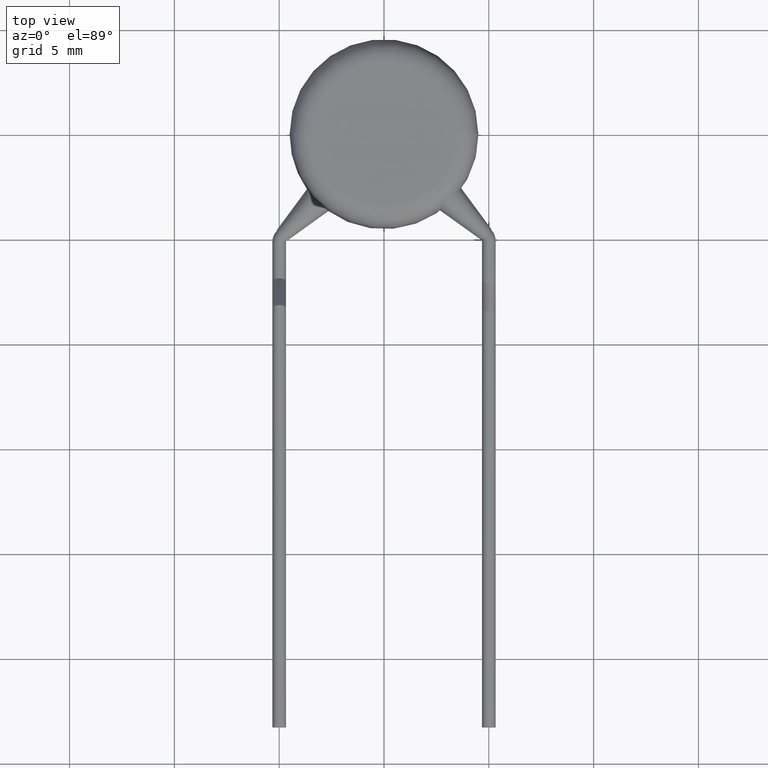
[diagram: clean part render]
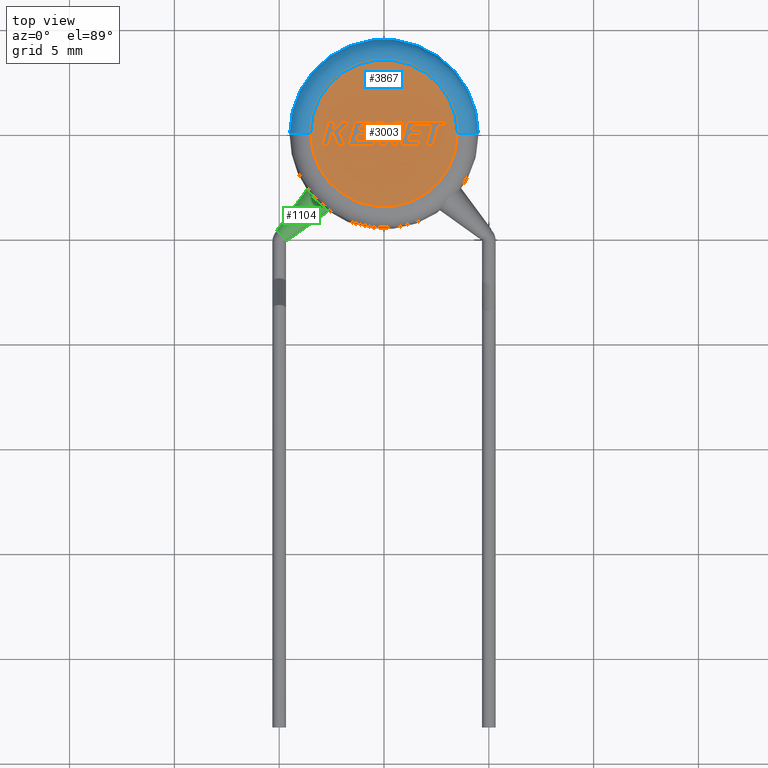
[diagram: same view with three faces highlighted in distinct colors, each labeled with its STEP entity id]
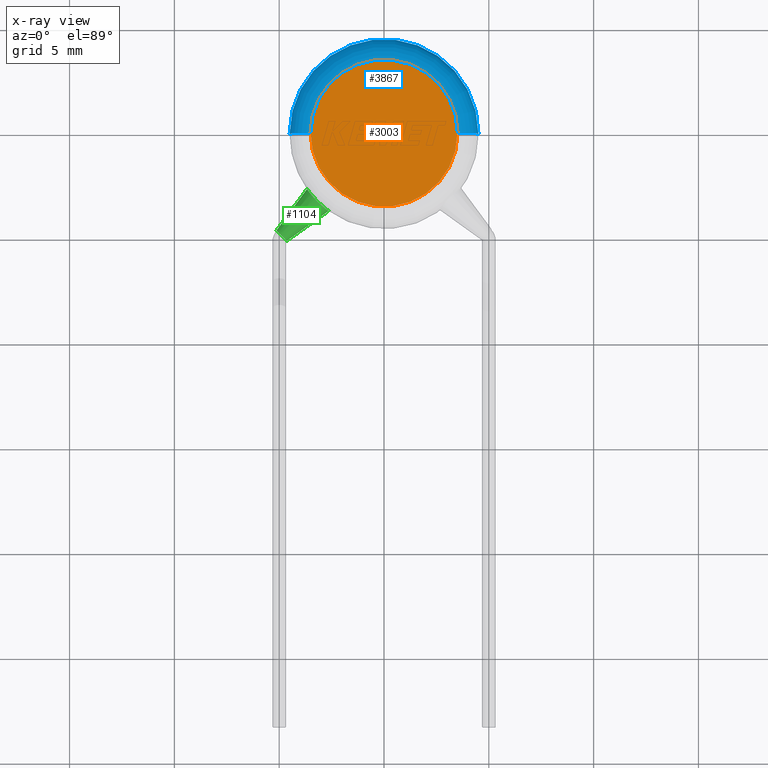
[diagram: x-ray of the same camera — body ghosted, the three highlighted faces saturated]
A machine part, top view with three faces highlighted in distinct colors.
The next image is the same camera in x-ray (body ghosted, the three faces saturated) — at least one of them is partly hidden behind the body in this view.
Their STEP definitions:

[orange] entity #3003 — the highlighted planar face has unit normal (0, 0, 1).
#232 = EDGE_CURVE ( 'NONE', #2545, #632, #2325, .T. ) ;
#616 = ORIENTED_EDGE ( 'NONE', *, *, #1552, .T. ) ;
#628 = CIRCLE ( 'NONE', #2949, 3.499999999999999600 ) ;
#632 = VERTEX_POINT ( 'NONE', #2626 ) ;
#669 = FACE_OUTER_BOUND ( 'NONE', #1146, .T. ) ;
#1146 = EDGE_LOOP ( 'NONE', ( #3660, #616 ) ) ;
#1552 = EDGE_CURVE ( 'NONE', #632, #2545, #628, .T. ) ;
#1688 = CARTESIAN_POINT ( 'NONE',  ( 3.499999999999999600, 0.0000000000000000000, 5.500000000000000000 ) ) ;
#1770 = DIRECTION ( 'NONE',  ( 0.0000000000000000000, 0.0000000000000000000, 1.000000000000000000 ) ) ;
#1920 = AXIS2_PLACEMENT_3D ( 'NONE', #2134, #1770, #3094 ) ;
#2134 = CARTESIAN_POINT ( 'NONE',  ( 0.0000000000000000000, 0.0000000000000000000, 5.500000000000000000 ) ) ;
#2325 = CIRCLE ( 'NONE', #1920, 3.499999999999999600 ) ;
#2445 = DIRECTION ( 'NONE',  ( 1.000000000000000000, 0.0000000000000000000, 0.0000000000000000000 ) ) ;
#2494 = DIRECTION ( 'NONE',  ( 0.0000000000000000000, 0.0000000000000000000, 1.000000000000000000 ) ) ;
#2545 = VERTEX_POINT ( 'NONE', #1688 ) ;
#2626 = CARTESIAN_POINT ( 'NONE',  ( -3.499999999999999600, 4.898587196589412800E-016, 5.500000000000000000 ) ) ;
#2949 = AXIS2_PLACEMENT_3D ( 'NONE', #3589, #3399, #2445 ) ;
#3003 = ADVANCED_FACE ( 'NONE', ( #669 ), #3834, .T. ) ;
#3094 = DIRECTION ( 'NONE',  ( 1.000000000000000000, 0.0000000000000000000, 0.0000000000000000000 ) ) ;
#3399 = DIRECTION ( 'NONE',  ( 0.0000000000000000000, 0.0000000000000000000, 1.000000000000000000 ) ) ;
#3589 = CARTESIAN_POINT ( 'NONE',  ( 0.0000000000000000000, 0.0000000000000000000, 5.500000000000000000 ) ) ;
#3660 = ORIENTED_EDGE ( 'NONE', *, *, #232, .T. ) ;
#3834 = PLANE ( 'NONE',  #3938 ) ;
#3938 = AXIS2_PLACEMENT_3D ( 'NONE', #4112, #2494, #4126 ) ;
#4112 = CARTESIAN_POINT ( 'NONE',  ( 0.0000000000000000000, 0.0000000000000000000, 5.500000000000000000 ) ) ;
#4126 = DIRECTION ( 'NONE',  ( 1.000000000000000000, 0.0000000000000000000, -0.0000000000000000000 ) ) ;

[blue] entity #3867 — the highlighted toroidal blend (fillet) surface has major radius 3.5 mm and minor (blend) radius 1 mm.
#34 = EDGE_CURVE ( 'NONE', #2918, #632, #339, .T. ) ;
#232 = EDGE_CURVE ( 'NONE', #2545, #632, #2325, .T. ) ;
#339 = CIRCLE ( 'NONE', #2962, 1.000000000000000000 ) ;
#559 = EDGE_CURVE ( 'NONE', #2918, #3190, #2883, .T. ) ;
#632 = VERTEX_POINT ( 'NONE', #2626 ) ;
#711 = CARTESIAN_POINT ( 'NONE',  ( 0.0000000000000000000, 0.0000000000000000000, 4.500000000000000000 ) ) ;
#1258 = TOROIDAL_SURFACE ( 'NONE', #1963, 3.499999999999999600, 1.000000000000000000 ) ;
#1259 = ORIENTED_EDGE ( 'NONE', *, *, #34, .T. ) ;
#1586 = DIRECTION ( 'NONE',  ( -1.000000000000000000, 1.224646799147353000E-016, 0.0000000000000000000 ) ) ;
#1688 = CARTESIAN_POINT ( 'NONE',  ( 3.499999999999999600, 0.0000000000000000000, 5.500000000000000000 ) ) ;
#1770 = DIRECTION ( 'NONE',  ( 0.0000000000000000000, 0.0000000000000000000, 1.000000000000000000 ) ) ;
#1778 = ORIENTED_EDGE ( 'NONE', *, *, #559, .F. ) ;
#1806 = CARTESIAN_POINT ( 'NONE',  ( 3.499999999999999600, 0.0000000000000000000, 4.500000000000000000 ) ) ;
#1881 = CARTESIAN_POINT ( 'NONE',  ( -4.500000000000000000, 0.0000000000000000000, 4.500000000000000000 ) ) ;
#1920 = AXIS2_PLACEMENT_3D ( 'NONE', #2134, #1770, #3094 ) ;
#1963 = AXIS2_PLACEMENT_3D ( 'NONE', #711, #3688, #3719 ) ;
#2134 = CARTESIAN_POINT ( 'NONE',  ( 0.0000000000000000000, 0.0000000000000000000, 5.500000000000000000 ) ) ;
#2172 = DIRECTION ( 'NONE',  ( 0.0000000000000000000, 0.0000000000000000000, -1.000000000000000000 ) ) ;
#2245 = CARTESIAN_POINT ( 'NONE',  ( 0.0000000000000000000, 0.0000000000000000000, 4.500000000000000000 ) ) ;
#2256 = DIRECTION ( 'NONE',  ( 1.000000000000000000, 0.0000000000000000000, 0.0000000000000000000 ) ) ;
#2325 = CIRCLE ( 'NONE', #1920, 3.499999999999999600 ) ;
#2482 = EDGE_LOOP ( 'NONE', ( #1778, #1259, #2611, #4262 ) ) ;
#2484 = FACE_OUTER_BOUND ( 'NONE', #2482, .T. ) ;
#2545 = VERTEX_POINT ( 'NONE', #1688 ) ;
#2611 = ORIENTED_EDGE ( 'NONE', *, *, #232, .F. ) ;
#2626 = CARTESIAN_POINT ( 'NONE',  ( -3.499999999999999600, 4.898587196589412800E-016, 5.500000000000000000 ) ) ;
#2808 = CARTESIAN_POINT ( 'NONE',  ( 4.500000000000000000, 5.510910596163088600E-016, 4.500000000000000000 ) ) ;
#2883 = CIRCLE ( 'NONE', #3597, 4.500000000000000000 ) ;
#2918 = VERTEX_POINT ( 'NONE', #1881 ) ;
#2962 = AXIS2_PLACEMENT_3D ( 'NONE', #3300, #3910, #1586 ) ;
#3094 = DIRECTION ( 'NONE',  ( 1.000000000000000000, 0.0000000000000000000, 0.0000000000000000000 ) ) ;
#3190 = VERTEX_POINT ( 'NONE', #2808 ) ;
#3300 = CARTESIAN_POINT ( 'NONE',  ( -3.499999999999999600, 4.286263797015736100E-016, 4.500000000000000000 ) ) ;
#3556 = CIRCLE ( 'NONE', #3716, 1.000000000000000000 ) ;
#3597 = AXIS2_PLACEMENT_3D ( 'NONE', #2245, #4195, #2256 ) ;
#3688 = DIRECTION ( 'NONE',  ( 0.0000000000000000000, 0.0000000000000000000, 1.000000000000000000 ) ) ;
#3716 = AXIS2_PLACEMENT_3D ( 'NONE', #1806, #4113, #2172 ) ;
#3719 = DIRECTION ( 'NONE',  ( 1.000000000000000000, 0.0000000000000000000, 0.0000000000000000000 ) ) ;
#3730 = EDGE_CURVE ( 'NONE', #3190, #2545, #3556, .T. ) ;
#3867 = ADVANCED_FACE ( 'NONE', ( #2484 ), #1258, .T. ) ;
#3910 = DIRECTION ( 'NONE',  ( 1.224646799147353200E-016, 1.000000000000000000, -0.0000000000000000000 ) ) ;
#4113 = DIRECTION ( 'NONE',  ( 0.0000000000000000000, -1.000000000000000000, 0.0000000000000000000 ) ) ;
#4195 = DIRECTION ( 'NONE',  ( -0.0000000000000000000, -0.0000000000000000000, -1.000000000000000000 ) ) ;
#4262 = ORIENTED_EDGE ( 'NONE', *, *, #3730, .F. ) ;

[green] entity #1104 — the highlighted conical surface has half-angle 9 deg.
#39 = CARTESIAN_POINT ( 'NONE',  ( -2.713538718226921700, -3.592388451032317000, 1.630461430778539700 ) ) ;
#55 = CARTESIAN_POINT ( 'NONE',  ( -3.664005410030750200, -2.612750956184529000, 1.440803524614450600 ) ) ;
#483 = CARTESIAN_POINT ( 'NONE',  ( -2.646112073073605400, -3.639792699692402200, 1.250000000000000000 ) ) ;
#782 = VERTEX_POINT ( 'NONE', #877 ) ;
#872 = ORIENTED_EDGE ( 'NONE', *, *, #3370, .F. ) ;
#877 = CARTESIAN_POINT ( 'NONE',  ( -5.126726062457613000, -4.566090218175493700, 1.250000000000000000 ) ) ;
#946 = ORIENTED_EDGE ( 'NONE', *, *, #2586, .T. ) ;
#1000 = CARTESIAN_POINT ( 'NONE',  ( -3.620002012783399200, -2.673385238087081300, 1.616023256991012700 ) ) ;
#1014 = CARTESIAN_POINT ( 'NONE',  ( -3.460516252383325900, -2.879872723696189900, 1.896667281250937300 ) ) ;
#1040 = CARTESIAN_POINT ( 'NONE',  ( -3.675301525212606900, -2.596566713714453900, 1.249999999999999800 ) ) ;
#1056 = DIRECTION ( 'NONE',  ( 0.8129794349880914400, 0.5822923993033428700, 0.0000000000000000000 ) ) ;
#1104 = ADVANCED_FACE ( 'NONE', ( #1559 ), #2917, .T. ) ;
#1387 = DIRECTION ( 'NONE',  ( 0.7023014166101511100, -0.7118797090993498300, 0.0000000000000000000 ) ) ;
#1399 = VERTEX_POINT ( 'NONE', #4166 ) ;
#1422 = ORIENTED_EDGE ( 'NONE', *, *, #3035, .F. ) ;
#1520 = AXIS2_PLACEMENT_3D ( 'NONE', #3629, #3012, #4010 ) ;
#1527 = LINE ( 'NONE', #3768, #2111 ) ;
#1559 = FACE_OUTER_BOUND ( 'NONE', #4164, .T. ) ;
#1738 = CARTESIAN_POINT ( 'NONE',  ( -4.635115070830507600, -5.064406014545037100, 1.250000000000000000 ) ) ;
#1755 = CARTESIAN_POINT ( 'NONE',  ( -5.126726062457613000, -4.566090218175493700, 1.250000000000000000 ) ) ;
#1919 = LINE ( 'NONE', #1755, #3462 ) ;
#1968 = EDGE_CURVE ( 'NONE', #4101, #2402, #1527, .T. ) ;
#2021 = ORIENTED_EDGE ( 'NONE', *, *, #1968, .T. ) ;
#2043 = CARTESIAN_POINT ( 'NONE',  ( -2.646112073073605400, -3.639792699692402200, 1.250000000000000000 ) ) ;
#2086 = B_SPLINE_CURVE_WITH_KNOTS ( 'NONE', 3,
 ( #2043, #2980, #39, #3009, #2340, #2648, #1014, #3968, #1000, #55, #3981, #1040 ),
 .UNSPECIFIED., .F., .F.,
 ( 4, 2, 2, 2, 2, 4 ),
 ( 0.0002544159492725248100, 0.0008245716578269011000, 0.001394727366381277200, 0.001964883074935653300, 0.002249960929212841700, 0.002535038783490029700 ),
 .UNSPECIFIED. ) ;
#2111 = VECTOR ( 'NONE', #1056, 1000.000000000000100 ) ;
#2340 = CARTESIAN_POINT ( 'NONE',  ( -3.069282135381531600, -3.296352838240775200, 1.973171742223098500 ) ) ;
#2402 = VERTEX_POINT ( 'NONE', #483 ) ;
#2586 = EDGE_CURVE ( 'NONE', #2402, #1399, #2086, .T. ) ;
#2603 = CIRCLE ( 'NONE', #1520, 0.3499999999999994800 ) ;
#2648 = CARTESIAN_POINT ( 'NONE',  ( -3.337401615049615500, -3.024596720327265200, 1.973257306624952800 ) ) ;
#2773 = AXIS2_PLACEMENT_3D ( 'NONE', #3667, #3330, #1387 ) ;
#2917 = CONICAL_SURFACE ( 'NONE', #2773, 0.3499999999999994800, 0.1570796326794896800 ) ;
#2980 = CARTESIAN_POINT ( 'NONE',  ( -2.646112073073607200, -3.639792699692402600, 1.442045859673016800 ) ) ;
#3009 = CARTESIAN_POINT ( 'NONE',  ( -2.925813596806542600, -3.421719152000778600, 1.895726553920096900 ) ) ;
#3012 = DIRECTION ( 'NONE',  ( -0.7118797090993498300, -0.7023014166101512200, 0.0000000000000000000 ) ) ;
#3035 = EDGE_CURVE ( 'NONE', #4101, #782, #2603, .T. ) ;
#3330 = DIRECTION ( 'NONE',  ( 0.7118797090993498300, 0.7023014166101512200, -0.0000000000000000000 ) ) ;
#3370 = EDGE_CURVE ( 'NONE', #782, #1399, #1919, .T. ) ;
#3462 = VECTOR ( 'NONE', #4068, 1000.000000000000100 ) ;
#3629 = CARTESIAN_POINT ( 'NONE',  ( -4.880920566644060300, -4.815248116360265800, 1.250000000000000000 ) ) ;
#3667 = CARTESIAN_POINT ( 'NONE',  ( -4.880920566644060300, -4.815248116360265800, 1.250000000000000000 ) ) ;
#3768 = CARTESIAN_POINT ( 'NONE',  ( -4.635115070830507600, -5.064406014545037100, 1.250000000000000000 ) ) ;
#3968 = CARTESIAN_POINT ( 'NONE',  ( -3.587330454778183700, -2.717677338766611300, 1.695991203997347500 ) ) ;
#3981 = CARTESIAN_POINT ( 'NONE',  ( -3.675301525212608200, -2.596566713714453500, 1.345021994429598200 ) ) ;
#4010 = DIRECTION ( 'NONE',  ( 0.7023014166101511100, -0.7118797090993498300, 0.0000000000000000000 ) ) ;
#4068 = DIRECTION ( 'NONE',  ( 0.5932511421792808800, 0.8050174422352467400, -1.915769668878472900E-017 ) ) ;
#4101 = VERTEX_POINT ( 'NONE', #1738 ) ;
#4164 = EDGE_LOOP ( 'NONE', ( #872, #1422, #2021, #946 ) ) ;
#4166 = CARTESIAN_POINT ( 'NONE',  ( -3.675301525212606900, -2.596566713714453900, 1.249999999999999800 ) ) ;